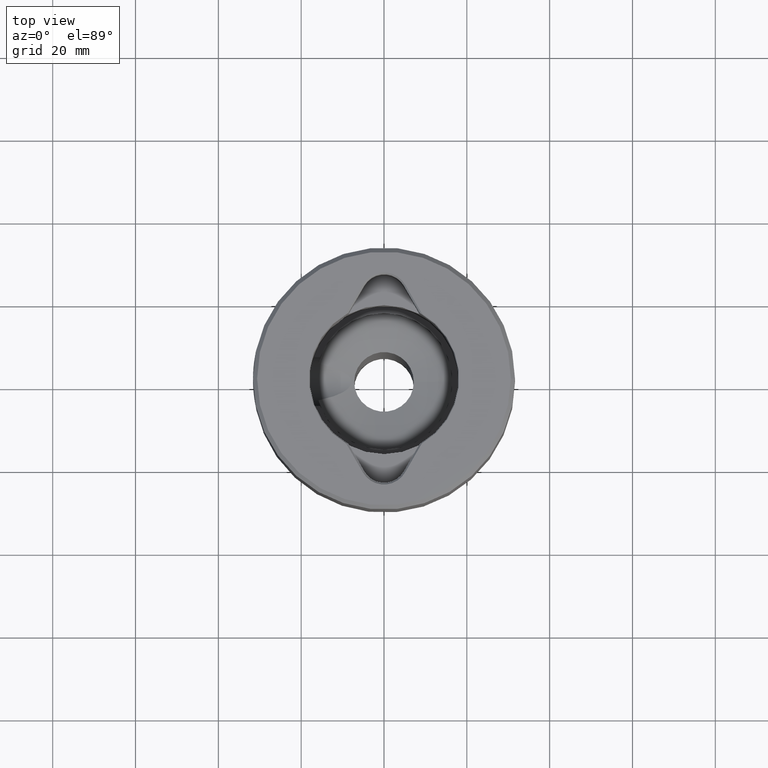
[diagram: clean part render]
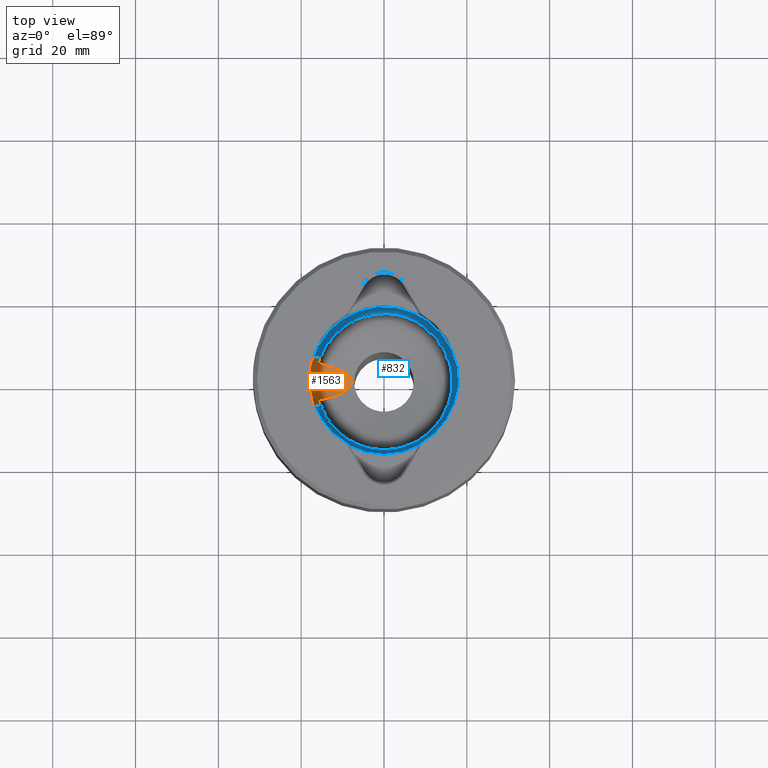
[diagram: same view with the hole feature highlighted: cylindrical wall and planar end face, labeled with their STEP entity ids]
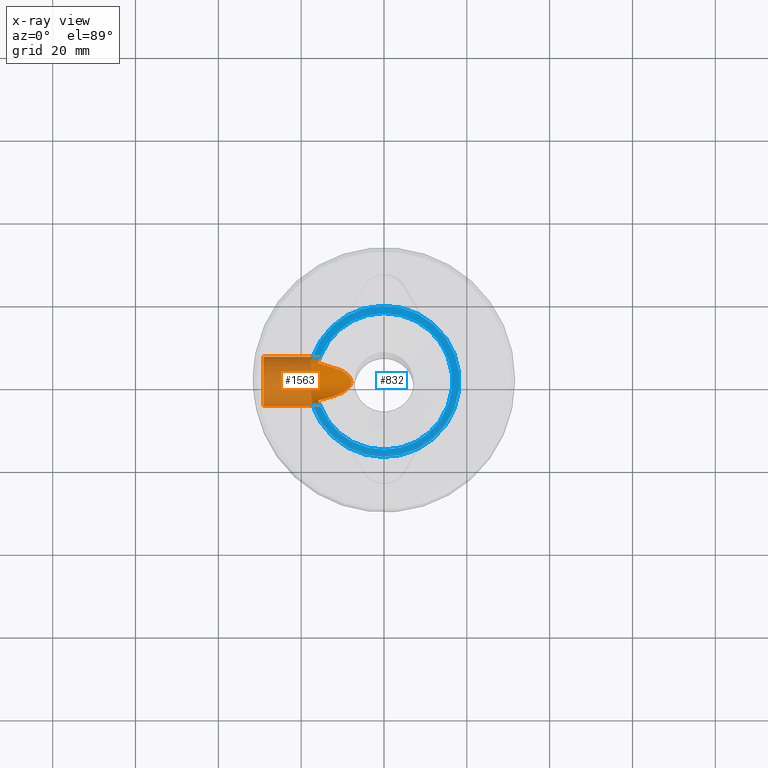
[diagram: x-ray of the same camera — body ghosted, the hole faces saturated]
A machine part, top view. The highlighted faces form one hole feature of diameter 11.8872 mm: the cylindrical wall (entity #1563, orange) and its adjacent planar end face (entity #832, blue) — they share a circular edge in the B-rep.
The next image is the same camera in x-ray (body ghosted, the hole faces saturated) — the bore reads through the body.
Wall:
#3 = CARTESIAN_POINT ( 'NONE',  ( -29.13499999999998380, 3.169268991917194800, -46.12813235872643958 ) ) ;
#4 = EDGE_CURVE ( 'NONE', #154, #17, #1004, .T. ) ;
#15 = CARTESIAN_POINT ( 'NONE',  ( -17.65974059316371125, 4.615101246511007282, -37.32748937166026337 ) ) ;
#17 = VERTEX_POINT ( 'NONE', #1000 ) ;
#54 = VECTOR ( 'NONE', #543, 1000.000000000000000 ) ;
#87 = CARTESIAN_POINT ( 'NONE',  ( -15.87871591281864880, -4.485128867713819467, -45.00000000000000000 ) ) ;
#96 = LINE ( 'NONE', #559, #396 ) ;
#105 = EDGE_CURVE ( 'NONE', #1064, #1503, #841, .T. ) ;
#120 = CARTESIAN_POINT ( 'NONE',  ( -15.87871591281842676, 4.485128867713756406, -45.00000000000009948 ) ) ;
#128 = CARTESIAN_POINT ( 'NONE',  ( -7.948584203051296093, 0.4197264035824127548, -47.03197964361482519 ) ) ;
#136 = CARTESIAN_POINT ( 'NONE',  ( -17.25488941679863686, 5.944465032686061079, -41.54696271765572391 ) ) ;
#139 = CARTESIAN_POINT ( 'NONE',  ( -8.424621231569453528, 1.324886831295680079, -46.89652878440850259 ) ) ;
#141 = VERTEX_POINT ( 'NONE', #647 ) ;
#148 = CARTESIAN_POINT ( 'NONE',  ( -8.557778441972169858, 1.475902258927561217, -46.85929848252312979 ) ) ;
#154 = VERTEX_POINT ( 'NONE', #1602 ) ;
#161 = VERTEX_POINT ( 'NONE', #1095 ) ;
#166 = CARTESIAN_POINT ( 'NONE',  ( -15.68031799022062422, 5.138370136309792890, -44.10015911010111722 ) ) ;
#169 = EDGE_CURVE ( 'NONE', #582, #789, #1159, .T. ) ;
#174 = CARTESIAN_POINT ( 'NONE',  ( -9.488206006153269811, -2.254741809650098183, -46.60535421999524175 ) ) ;
#178 = CARTESIAN_POINT ( 'NONE',  ( -17.73951951973646146, 3.069279814120022820, -35.99462004485808819 ) ) ;
#190 = CARTESIAN_POINT ( 'NONE',  ( -29.13499999999998380, 3.169268991917194800, -46.12813235872643958 ) ) ;
#236 = CARTESIAN_POINT ( 'NONE',  ( -17.47808968508857674, 4.303066460095659629, -37.00000000000001421 ) ) ;
#239 = EDGE_CURVE ( 'NONE', #161, #1054, #260, .T. ) ;
#252 = AXIS2_PLACEMENT_3D ( 'NONE', #1044, #1186, #1199 ) ;
#260 = B_SPLINE_CURVE_WITH_KNOTS ( 'NONE', 3,
 ( #606, #984, #1392, #383, #1263, #1006, #902, #757 ),
 .UNSPECIFIED., .F., .F.,
 ( 4, 2, 2, 4 ),
 ( 8.673617379884035472E-18, 0.001681366410791654709, 0.002522049616187477944, 0.003362732821583300745 ),
 .UNSPECIFIED. ) ;
#261 = CARTESIAN_POINT ( 'NONE',  ( -10.53408056000436588, 2.830849776338641988, -46.33027483142038250 ) ) ;
#283 = CARTESIAN_POINT ( 'NONE',  ( -17.73544809245032283, 4.303066460095659629, -37.00000000000001421 ) ) ;
#291 = CARTESIAN_POINT ( 'NONE',  ( -18.00005038447081418, 0.3995995293501801715, -35.15624741225297356 ) ) ;
#298 = CARTESIAN_POINT ( 'NONE',  ( -17.45303127611503413, 5.335116652827363026, -38.47060134427812272 ) ) ;
#304 = CARTESIAN_POINT ( 'NONE',  ( -15.82693802134651051, 4.668438300619807357, -44.78918809506385657 ) ) ;
#315 = CARTESIAN_POINT ( 'NONE',  ( -10.54970848818695472, -2.838430942403631363, -46.32621679743990484 ) ) ;
#318 = CARTESIAN_POINT ( 'NONE',  ( -28.72781710516956011, 2.212830320148268193, -46.62308418830599521 ) ) ;
#322 = CARTESIAN_POINT ( 'NONE',  ( -28.72790788651533234, -2.213217563268052857, -46.62296967671325376 ) ) ;
#326 = ORIENTED_EDGE ( 'NONE', *, *, #465, .T. ) ;
#327 = CARTESIAN_POINT ( 'NONE',  ( -28.39156783790569705, 0.2903020201593697336, -47.04338772295518112 ) ) ;
#328 = ORIENTED_EDGE ( 'NONE', *, *, #1662, .F. ) ;
#349 = ORIENTED_EDGE ( 'NONE', *, *, #1272, .T. ) ;
#361 = CARTESIAN_POINT ( 'NONE',  ( -17.24898787374755926, -5.961237720381741489, -41.09178217714228509 ) ) ;
#374 = CARTESIAN_POINT ( 'NONE',  ( -17.45237711807387981, -5.341695576362655906, -38.45545562575216536 ) ) ;
#376 = EDGE_CURVE ( 'NONE', #141, #1353, #96, .T. ) ;
#383 = CARTESIAN_POINT ( 'NONE',  ( -15.55482444925873331, -5.505722790153260604, -43.35639408592899002 ) ) ;
#385 = B_SPLINE_CURVE_WITH_KNOTS ( 'NONE', 3,
 ( #921, #136, #1175, #811, #418, #556, #1314, #550, #1440, #298, #401, #806, #15, #283 ),
 .UNSPECIFIED., .F., .F.,
 ( 4, 2, 2, 2, 2, 2, 4 ),
 ( 0.0000000000000000000, 0.001356916952770659789, 0.002035375429156000091, 0.002713833905541340394, 0.003392292381926680263, 0.004070750858312020132, 0.005427667811082718952 ),
 .UNSPECIFIED. ) ;
#396 = VECTOR ( 'NONE', #1073, 1000.000000000000000 ) ;
#399 = CARTESIAN_POINT ( 'NONE',  ( -8.421721133938241621, -1.321473119626175974, -46.89734118146309783 ) ) ;
#400 = CARTESIAN_POINT ( 'NONE',  ( -29.13499999999998380, 4.303066460095659629, -37.00000000000000711 ) ) ;
#401 = CARTESIAN_POINT ( 'NONE',  ( -17.48482301144992590, 5.230468492783964862, -38.26812100276221429 ) ) ;
#405 = CARTESIAN_POINT ( 'NONE',  ( -9.485807888113100717, 2.253223151500319599, -46.60599448321172389 ) ) ;
#407 = DIRECTION ( 'NONE',  ( 1.000000000000000000, 0.0000000000000000000, 2.238352872228141622E-16 ) ) ;
#416 = CARTESIAN_POINT ( 'NONE',  ( -17.73773585705187017, -3.066641091906500360, -36.00467162094060569 ) ) ;
#418 = CARTESIAN_POINT ( 'NONE',  ( -17.27759618979989753, 5.877863810190451233, -40.18941681144517020 ) ) ;
#426 = CARTESIAN_POINT ( 'NONE',  ( -17.93301564307783735, -1.600984120489764351, -35.36193294050647751 ) ) ;
#451 = CARTESIAN_POINT ( 'NONE',  ( -8.086389199141580164, -0.8029940697207943456, -46.99236771774894805 ) ) ;
#458 = CARTESIAN_POINT ( 'NONE',  ( -10.91385912449034024, -3.002905337484227388, -46.23229583061102232 ) ) ;
#460 = CARTESIAN_POINT ( 'NONE',  ( -28.47298010805440427, -1.138407004167235614, -46.94069079623534435 ) ) ;
#465 = EDGE_CURVE ( 'NONE', #1487, #1054, #1059, .T. ) ;
#466 = CARTESIAN_POINT ( 'NONE',  ( -17.47808968508857674, -4.303066460095659629, -37.00000000000001421 ) ) ;
#472 = ORIENTED_EDGE ( 'NONE', *, *, #1258, .F. ) ;
#531 = CARTESIAN_POINT ( 'NONE',  ( -12.77898296353568952, -3.700208595761669716, -45.76023914925220026 ) ) ;
#534 = CARTESIAN_POINT ( 'NONE',  ( -15.87871591281842676, 4.485128867713756406, -45.00000000000009948 ) ) ;
#543 = DIRECTION ( 'NONE',  ( -1.000000000000000000, -0.0000000000000000000, -2.238352872228141622E-16 ) ) ;
#546 = VECTOR ( 'NONE', #407, 1000.000000000000000 ) ;
#550 = CARTESIAN_POINT ( 'NONE',  ( -17.37009226415363017, 5.598884156984400562, -39.09260677213644897 ) ) ;
#555 = CARTESIAN_POINT ( 'NONE',  ( -17.98300174837449106, -0.8076756600791862306, -35.20804669246030016 ) ) ;
#556 = CARTESIAN_POINT ( 'NONE',  ( -17.30698711846406823, 5.790752105750455847, -39.74145858945264820 ) ) ;
#559 = CARTESIAN_POINT ( 'NONE',  ( -29.13499999999998380, -4.303066460095659629, -37.00000000000000711 ) ) ;
#563 = CARTESIAN_POINT ( 'NONE',  ( -17.47808968508857674, 4.303066460095659629, -37.00000000000001421 ) ) ;
#579 = EDGE_CURVE ( 'NONE', #17, #1503, #385, .T. ) ;
#580 = CARTESIAN_POINT ( 'NONE',  ( -17.93344118099959772, 1.597092043690149010, -35.36060056394857298 ) ) ;
#582 = VERTEX_POINT ( 'NONE', #3 ) ;
#585 = CARTESIAN_POINT ( 'NONE',  ( -14.31534451165081201, -4.133562751429330717, -45.38054103594014776 ) ) ;
#586 = CARTESIAN_POINT ( 'NONE',  ( -28.64890739544052423, -1.951991849414767222, -46.72088408440625784 ) ) ;
#589 = CARTESIAN_POINT ( 'NONE',  ( -28.39123471314119840, -0.2815437069525423830, -47.04380905054649986 ) ) ;
#597 = CARTESIAN_POINT ( 'NONE',  ( -29.01836118009460819, -2.947204214217280960, -46.26810142953657845 ) ) ;
#606 = CARTESIAN_POINT ( 'NONE',  ( -15.87871591281864880, -4.485128867713819467, -45.00000000000000000 ) ) ;
#615 = ORIENTED_EDGE ( 'NONE', *, *, #376, .F. ) ;
#623 = AXIS2_PLACEMENT_3D ( 'NONE', #696, #1337, #1083 ) ;
#634 = CARTESIAN_POINT ( 'NONE',  ( -17.73544809245032283, -4.303066460095659629, -37.00000000000001421 ) ) ;
#643 = CARTESIAN_POINT ( 'NONE',  ( -17.58578032052965412, -4.884619659714878992, -37.68418130489555296 ) ) ;
#647 = CARTESIAN_POINT ( 'NONE',  ( -17.73544809245032283, -4.303066460095659629, -37.00000000000001421 ) ) ;
#652 = CARTESIAN_POINT ( 'NONE',  ( -17.65972925080994216, -4.615147994970118184, -37.32753843549598827 ) ) ;
#655 = CARTESIAN_POINT ( 'NONE',  ( -15.09519321709961304, -4.319881757307797443, -45.19003963722776263 ) ) ;
#656 = VECTOR ( 'NONE', #766, 1000.000000000000000 ) ;
#664 = ORIENTED_EDGE ( 'NONE', *, *, #579, .T. ) ;
#668 = CARTESIAN_POINT ( 'NONE',  ( -9.002153746872750162, 1.888909912605161390, -46.73693644783809731 ) ) ;
#671 = CARTESIAN_POINT ( 'NONE',  ( -7.908999161993494731, 0.2104086119077938632, -47.04347733017014122 ) ) ;
#672 = CARTESIAN_POINT ( 'NONE',  ( -17.70757355183502568, -3.235638679801304374, -36.11036548238104871 ) ) ;
#679 = CARTESIAN_POINT ( 'NONE',  ( -7.908159212613716349, -0.2034202581083913997, -47.04372061564155416 ) ) ;
#681 = CARTESIAN_POINT ( 'NONE',  ( -17.79480805210510397, -2.715946853281268503, -35.80941481807833071 ) ) ;
#696 = CARTESIAN_POINT ( 'NONE',  ( -29.13499999999998380, 0.0000000000000000000, -41.09999999999998010 ) ) ;
#710 = CARTESIAN_POINT ( 'NONE',  ( -8.558031158205302802, -1.476354926101384191, -46.85922458744269647 ) ) ;
#712 = CARTESIAN_POINT ( 'NONE',  ( -17.98657520850696301, 0.8013288071157083081, -35.19667203812526424 ) ) ;
#757 = CARTESIAN_POINT ( 'NONE',  ( -15.41861274693673955, -5.875064336668996745, -42.00000000000000000 ) ) ;
#766 = DIRECTION ( 'NONE',  ( -1.000000000000000000, -0.0000000000000000000, -2.238352872228141622E-16 ) ) ;
#767 = CARTESIAN_POINT ( 'NONE',  ( -15.41861274693673955, -5.875064336668996745, -42.00000000000000000 ) ) ;
#771 = CARTESIAN_POINT ( 'NONE',  ( -17.27361060634245149, -5.889508846079281490, -40.17798685287650784 ) ) ;
#789 = VERTEX_POINT ( 'NONE', #1077 ) ;
#795 = CARTESIAN_POINT ( 'NONE',  ( -15.41861274693673955, 5.875064336668996745, -42.00000000000000000 ) ) ;
#805 = CARTESIAN_POINT ( 'NONE',  ( -17.82168907028121652, -2.534138618924547171, -35.71997473518626975 ) ) ;
#806 = CARTESIAN_POINT ( 'NONE',  ( -17.58550906844438799, 4.885664375148834893, -37.68525286889200743 ) ) ;
#810 = CARTESIAN_POINT ( 'NONE',  ( -17.54631524529848363, 4.025949554925296603, -36.70915793654535264 ) ) ;
#811 = CARTESIAN_POINT ( 'NONE',  ( -17.26708544708199611, 5.908519309107444606, -40.41651335315835070 ) ) ;
#827 = CARTESIAN_POINT ( 'NONE',  ( -15.77631472574170601, 4.835608917861583755, -44.56708649115371657 ) ) ;
#830 = CARTESIAN_POINT ( 'NONE',  ( -28.91253034172545000, 2.710358581942224898, -46.39670023072624616 ) ) ;
#831 = CARTESIAN_POINT ( 'NONE',  ( -17.61376809174897673, 3.723735352916617281, -36.45035720886340869 ) ) ;
#841 = LINE ( 'NONE', #400, #54 ) ;
#846 = CARTESIAN_POINT ( 'NONE',  ( -28.52326822906408665, 1.422804000834928528, -46.87747037864890132 ) ) ;
#902 = CARTESIAN_POINT ( 'NONE',  ( -15.43498477826397064, -5.832097315977880392, -42.28048223435033037 ) ) ;
#921 = CARTESIAN_POINT ( 'NONE',  ( -17.27848717451849225, 5.875064336668996745, -42.00000000000000711 ) ) ;
#923 = CARTESIAN_POINT ( 'NONE',  ( -12.77357461375436287, 3.698614830238702300, -45.76158028319667181 ) ) ;
#941 = CARTESIAN_POINT ( 'NONE',  ( -17.99997459435151370, -0.2031945115799497770, -35.15647694018812075 ) ) ;
#950 = CARTESIAN_POINT ( 'NONE',  ( -17.99658589789812524, -0.4044599776225978327, -35.16671542258304584 ) ) ;
#957 = CARTESIAN_POINT ( 'NONE',  ( -9.004782376149123024, -1.891032092975599710, -46.73622034454714225 ) ) ;
#958 = CARTESIAN_POINT ( 'NONE',  ( -28.47442836501477714, 1.147591819891040865, -46.93886959470955134 ) ) ;
#966 = EDGE_CURVE ( 'NONE', #141, #1487, #1187, .T. ) ;
#971 = ORIENTED_EDGE ( 'NONE', *, *, #1223, .F. ) ;
#984 = CARTESIAN_POINT ( 'NONE',  ( -15.77519346842469439, -4.851629704950651600, -44.57851192688917763 ) ) ;
#998 = CARTESIAN_POINT ( 'NONE',  ( -29.13500000000000512, -3.169268991917194356, -46.12813235872641826 ) ) ;
#1000 = CARTESIAN_POINT ( 'NONE',  ( -17.27848717451849225, 5.875064336668996745, -42.00000000000000711 ) ) ;
#1004 = LINE ( 'NONE', #1268, #656 ) ;
#1006 = CARTESIAN_POINT ( 'NONE',  ( -15.45862248000051586, -5.769619042625746985, -42.55485892899337586 ) ) ;
#1007 = CARTESIAN_POINT ( 'NONE',  ( -15.09506070086857044, 4.319853809267001132, -45.19007177839817047 ) ) ;
#1013 = CARTESIAN_POINT ( 'NONE',  ( -14.31620311427808723, 4.133872990525722990, -45.38032434487759303 ) ) ;
#1026 = B_SPLINE_CURVE_WITH_KNOTS ( 'NONE', 3,
 ( #1432, #1182, #1672, #672, #416, #681, #805, #1189, #426, #1320, #555, #950, #941, #291, #712, #580, #1062, #1216, #178, #831, #810, #563 ),
 .UNSPECIFIED., .F., .F.,
 ( 4, 2, 2, 2, 2, 2, 2, 2, 2, 2, 4 ),
 ( 8.673617379884035472E-19, 0.001205497997501937422, 0.001808246996252906458, 0.002410995995003875278, 0.003616493992505805544, 0.004219242991256767425, 0.004821991990007730607, 0.006027489987509655235, 0.007232987985011580731, 0.008438485982513507094, 0.009643983980015431723 ),
 .UNSPECIFIED. ) ;
#1027 = ORIENTED_EDGE ( 'NONE', *, *, #966, .T. ) ;
#1044 = CARTESIAN_POINT ( 'NONE',  ( -29.13499999999998380, 0.0000000000000000000, -41.09999999999998010 ) ) ;
#1045 = CARTESIAN_POINT ( 'NONE',  ( -7.946892993800669380, -0.4130514367404827802, -47.03246873635111314 ) ) ;
#1047 = CARTESIAN_POINT ( 'NONE',  ( -29.13499999999998380, -5.875064336668996745, -42.00000000000000000 ) ) ;
#1054 = VERTEX_POINT ( 'NONE', #767 ) ;
#1059 = LINE ( 'NONE', #1047, #546 ) ;
#1062 = CARTESIAN_POINT ( 'NONE',  ( -17.89468791939741621, 1.979254142623061430, -35.48138563534600820 ) ) ;
#1064 = VERTEX_POINT ( 'NONE', #236 ) ;
#1071 = ORIENTED_EDGE ( 'NONE', *, *, #4, .T. ) ;
#1073 = DIRECTION ( 'NONE',  ( 1.000000000000000000, 0.0000000000000000000, 2.238352872228141622E-16 ) ) ;
#1077 = CARTESIAN_POINT ( 'NONE',  ( -29.13500000000000512, -3.169268991917194356, -46.12813235872641826 ) ) ;
#1083 = DIRECTION ( 'NONE',  ( 0.0000000000000000000, 0.0000000000000000000, 1.000000000000000000 ) ) ;
#1086 = CARTESIAN_POINT ( 'NONE',  ( -9.837242105554929950, -2.464455448254169401, -46.51262335399459857 ) ) ;
#1088 = CARTESIAN_POINT ( 'NONE',  ( -28.40806529981218631, 0.5775518579252996165, -47.02248250149474273 ) ) ;
#1091 = CARTESIAN_POINT ( 'NONE',  ( -29.01872157818244702, 2.947890364174267752, -46.26766894414689801 ) ) ;
#1095 = CARTESIAN_POINT ( 'NONE',  ( -15.87871591281864880, -4.485128867713819467, -45.00000000000000000 ) ) ;
#1103 = CARTESIAN_POINT ( 'NONE',  ( -28.64994935480076776, 1.955431134270609439, -46.71959289273542737 ) ) ;
#1121 = CARTESIAN_POINT ( 'NONE',  ( -17.73544809245032283, 4.303066460095659629, -37.00000000000001421 ) ) ;
#1131 = VERTEX_POINT ( 'NONE', #534 ) ;
#1146 = ORIENTED_EDGE ( 'NONE', *, *, #105, .F. ) ;
#1148 = B_SPLINE_CURVE_WITH_KNOTS ( 'NONE', 3,
 ( #795, #1593, #1332, #1194, #166, #827, #304, #1350 ),
 .UNSPECIFIED., .F., .F.,
 ( 4, 2, 2, 4 ),
 ( 0.0000000000000000000, 0.001680228961084241678, 0.002520343441626363059, 0.003360457922168484657 ),
 .UNSPECIFIED. ) ;
#1156 = CARTESIAN_POINT ( 'NONE',  ( -17.27848717451849225, -5.875064336668996745, -42.00000000000000711 ) ) ;
#1159 = B_SPLINE_CURVE_WITH_KNOTS ( 'NONE', 3,
 ( #190, #1091, #830, #318, #1103, #846, #958, #1088, #327, #589, #1215, #460, #1606, #586, #322, #1230, #597, #998 ),
 .UNSPECIFIED., .F., .F.,
 ( 4, 2, 2, 2, 2, 2, 2, 2, 4 ),
 ( 0.004243872954522444688, 0.005095147408334665083, 0.005946421862146885479, 0.006797696315959105007, 0.007648970769771325402, 0.008500245223583545798, 0.009351519677395765326, 0.01020279413120798659, 0.01105406858502020612 ),
 .UNSPECIFIED. ) ;
#1164 = CARTESIAN_POINT ( 'NONE',  ( -8.187125900011364976, -0.9869371718566788410, -46.96356640612092548 ) ) ;
#1175 = CARTESIAN_POINT ( 'NONE',  ( -17.24911640784538136, 5.960859350823936254, -41.09446739480885213 ) ) ;
#1177 = FACE_OUTER_BOUND ( 'NONE', #1631, .T. ) ;
#1182 = CARTESIAN_POINT ( 'NONE',  ( -17.54630753166970791, -4.025980885953251764, -36.70919081934914630 ) ) ;
#1186 = DIRECTION ( 'NONE',  ( -1.000000000000000000, -0.0000000000000000000, -2.238352872228141622E-16 ) ) ;
#1187 = B_SPLINE_CURVE_WITH_KNOTS ( 'NONE', 3,
 ( #634, #652, #643, #374, #1419, #1528, #771, #361, #1521, #1156 ),
 .UNSPECIFIED., .F., .F.,
 ( 4, 2, 2, 2, 4 ),
 ( 0.0000000000000000000, 0.001357282532757201222, 0.002714565065514402444, 0.004071847598271604099, 0.005429130131028804887 ),
 .UNSPECIFIED. ) ;
#1189 = CARTESIAN_POINT ( 'NONE',  ( -17.89439849500775992, -1.982004523881633729, -35.48229257195178832 ) ) ;
#1194 = CARTESIAN_POINT ( 'NONE',  ( -15.63467731691000218, 5.274684817462084396, -43.85354033052460920 ) ) ;
#1199 = DIRECTION ( 'NONE',  ( 0.0000000000000000000, 0.0000000000000000000, 1.000000000000000000 ) ) ;
#1200 = FACE_OUTER_BOUND ( 'NONE', #1401, .T. ) ;
#1210 = CARTESIAN_POINT ( 'NONE',  ( -10.89843361295637436, 2.996207431555043765, -46.23625686413485170 ) ) ;
#1215 = CARTESIAN_POINT ( 'NONE',  ( -28.40726248572875789, -0.5672878153005923574, -47.02349761703140985 ) ) ;
#1216 = CARTESIAN_POINT ( 'NONE',  ( -17.79807334049802492, 2.714016960148156521, -35.79713414465206256 ) ) ;
#1223 = EDGE_CURVE ( 'NONE', #1353, #1064, #1026, .T. ) ;
#1230 = CARTESIAN_POINT ( 'NONE',  ( -28.91326441861943763, -2.712192471906369029, -46.39580381317007607 ) ) ;
#1258 = EDGE_CURVE ( 'NONE', #154, #1131, #1148, .T. ) ;
#1263 = CARTESIAN_POINT ( 'NONE',  ( -15.51838491448997281, -5.606892412195626285, -43.09195278015431541 ) ) ;
#1268 = CARTESIAN_POINT ( 'NONE',  ( -29.13499999999998380, 5.875064336668996745, -42.00000000000000000 ) ) ;
#1272 = EDGE_CURVE ( 'NONE', #789, #582, #1362, .T. ) ;
#1299 = CARTESIAN_POINT ( 'NONE',  ( -12.02119474604759120, -3.454378292790186489, -45.94971458598282510 ) ) ;
#1308 = CARTESIAN_POINT ( 'NONE',  ( -8.845948090793100960, 1.757612675323145135, -46.77966585040389447 ) ) ;
#1313 = CARTESIAN_POINT ( 'NONE',  ( -8.089037226951266035, 0.8083874333084646313, -46.99160950028034733 ) ) ;
#1314 = CARTESIAN_POINT ( 'NONE',  ( -17.32570298634974293, 5.734773325714983550, -39.52218306598285125 ) ) ;
#1320 = CARTESIAN_POINT ( 'NONE',  ( -17.97275688109828806, -1.009485089126119783, -35.23929470898269045 ) ) ;
#1332 = CARTESIAN_POINT ( 'NONE',  ( -15.51287802815809158, 5.626931152355648891, -43.09390070670851003 ) ) ;
#1337 = DIRECTION ( 'NONE',  ( -1.000000000000000000, -0.0000000000000000000, -2.238352872228141622E-16 ) ) ;
#1348 = CARTESIAN_POINT ( 'NONE',  ( -9.828072271985957897, 2.458997996993296020, -46.51505439669529807 ) ) ;
#1350 = CARTESIAN_POINT ( 'NONE',  ( -15.87871591281842676, 4.485128867713756406, -45.00000000000009948 ) ) ;
#1353 = VERTEX_POINT ( 'NONE', #466 ) ;
#1362 = CIRCLE ( 'NONE', #623, 5.943599999999999994 ) ;
#1372 = ORIENTED_EDGE ( 'NONE', *, *, #239, .F. ) ;
#1392 = CARTESIAN_POINT ( 'NONE',  ( -15.67697036224831741, -5.152163489085762826, -44.11550316760660451 ) ) ;
#1401 = EDGE_LOOP ( 'NONE', ( #615, #1027, #326, #1372, #328, #472, #1071, #664, #1146, #971 ) ) ;
#1408 = B_SPLINE_CURVE_WITH_KNOTS ( 'NONE', 3,
 ( #120, #1007, #1013, #923, #1669, #1210, #261, #1348, #405, #668, #1308, #148, #139, #1465, #1313, #128, #671, #679, #1045, #451, #1164, #399, #710, #1590, #957, #174, #1086, #315, #458, #1299, #531, #585, #655, #87 ),
 .UNSPECIFIED., .F., .F.,
 ( 4, 2, 2, 2, 2, 2, 2, 2, 2, 2, 2, 2, 2, 2, 2, 2, 4 ),
 ( 0.0008859637086206665138, 0.003354904312487089722, 0.005823844916353512063, 0.007058315218286727137, 0.008292785520219940476, 0.008910020671186548447, 0.009527255822153156417, 0.01014449097311976092, 0.01076172612408636889, 0.01137896127505297339, 0.01199619642601958136, 0.01261343157698618586, 0.01323066672795279036, 0.01446513702988599936, 0.01569960733181921184, 0.01816854793568562984, 0.02063748853955204784 ),
 .UNSPECIFIED. ) ;
#1419 = CARTESIAN_POINT ( 'NONE',  ( -17.39270068669268809, -5.529643607952101192, -38.87463754991716058 ) ) ;
#1432 = CARTESIAN_POINT ( 'NONE',  ( -17.47808968508857674, -4.303066460095659629, -37.00000000000001421 ) ) ;
#1440 = CARTESIAN_POINT ( 'NONE',  ( -17.39576746130710561, 5.518971358546307826, -38.88230702451098608 ) ) ;
#1459 = ORIENTED_EDGE ( 'NONE', *, *, #169, .T. ) ;
#1465 = CARTESIAN_POINT ( 'NONE',  ( -8.190621368697788895, 0.9926241216894411412, -46.96257353192754636 ) ) ;
#1487 = VERTEX_POINT ( 'NONE', #1626 ) ;
#1493 = CYLINDRICAL_SURFACE ( 'NONE', #252, 5.943599999999999994 ) ;
#1503 = VERTEX_POINT ( 'NONE', #1121 ) ;
#1521 = CARTESIAN_POINT ( 'NONE',  ( -17.25488195640502553, -5.944486973605870972, -41.54681949063853352 ) ) ;
#1528 = CARTESIAN_POINT ( 'NONE',  ( -17.30381054256708495, -5.801821809982614653, -39.73323003017544153 ) ) ;
#1563 = ADVANCED_FACE ( 'NONE', ( #1177, #1200 ), #1493, .F. ) ;
#1590 = CARTESIAN_POINT ( 'NONE',  ( -8.849840146046854983, -1.761208932589308107, -46.77859443984123544 ) ) ;
#1593 = CARTESIAN_POINT ( 'NONE',  ( -15.45137067951956489, 5.789093894825086295, -42.56120208542758832 ) ) ;
#1602 = CARTESIAN_POINT ( 'NONE',  ( -15.41861274693673955, 5.875064336668996745, -42.00000000000000000 ) ) ;
#1606 = CARTESIAN_POINT ( 'NONE',  ( -28.52176380542726264, -1.415518073822676914, -46.87935278843529119 ) ) ;
#1626 = CARTESIAN_POINT ( 'NONE',  ( -17.27848717451849225, -5.875064336668996745, -42.00000000000000711 ) ) ;
#1631 = EDGE_LOOP ( 'NONE', ( #1459, #349 ) ) ;
#1662 = EDGE_CURVE ( 'NONE', #1131, #161, #1408, .T. ) ;
#1669 = CARTESIAN_POINT ( 'NONE',  ( -12.01218460409168109, 3.451500729856671779, -45.95196599544048155 ) ) ;
#1672 = CARTESIAN_POINT ( 'NONE',  ( -17.61361075716549962, -3.724351102482070797, -36.45098858594614910 ) ) ;
End face:
#4 = EDGE_CURVE ( 'NONE', #154, #17, #1004, .T. ) ;
#17 = VERTEX_POINT ( 'NONE', #1000 ) ;
#36 = CIRCLE ( 'NONE', #1537, 18.25000000000000000 ) ;
#45 = PLANE ( 'NONE',  #988 ) ;
#64 = ORIENTED_EDGE ( 'NONE', *, *, #683, .F. ) ;
#92 = DIRECTION ( 'NONE',  ( 0.0000000000000000000, 0.0000000000000000000, 1.000000000000000000 ) ) ;
#117 = FACE_OUTER_BOUND ( 'NONE', #467, .T. ) ;
#154 = VERTEX_POINT ( 'NONE', #1602 ) ;
#356 = CARTESIAN_POINT ( 'NONE',  ( 0.0000000000000000000, 0.0000000000000000000, -42.00000000000000000 ) ) ;
#407 = DIRECTION ( 'NONE',  ( 1.000000000000000000, 0.0000000000000000000, 2.238352872228141622E-16 ) ) ;
#465 = EDGE_CURVE ( 'NONE', #1487, #1054, #1059, .T. ) ;
#467 = EDGE_LOOP ( 'NONE', ( #1561, #64, #911, #953 ) ) ;
#480 = DIRECTION ( 'NONE',  ( 0.0000000000000000000, 0.0000000000000000000, 1.000000000000000000 ) ) ;
#546 = VECTOR ( 'NONE', #407, 1000.000000000000000 ) ;
#573 = AXIS2_PLACEMENT_3D ( 'NONE', #630, #1512, #1178 ) ;
#630 = CARTESIAN_POINT ( 'NONE',  ( 0.0000000000000000000, 0.0000000000000000000, -42.00000000000000000 ) ) ;
#656 = VECTOR ( 'NONE', #766, 1000.000000000000000 ) ;
#661 = EDGE_CURVE ( 'NONE', #1487, #17, #36, .T. ) ;
#683 = EDGE_CURVE ( 'NONE', #1054, #154, #1365, .T. ) ;
#762 = CARTESIAN_POINT ( 'NONE',  ( 0.0000000000000000000, 0.0000000000000000000, -42.00000000000000000 ) ) ;
#766 = DIRECTION ( 'NONE',  ( -1.000000000000000000, -0.0000000000000000000, -2.238352872228141622E-16 ) ) ;
#767 = CARTESIAN_POINT ( 'NONE',  ( -15.41861274693673955, -5.875064336668996745, -42.00000000000000000 ) ) ;
#832 = ADVANCED_FACE ( 'NONE', ( #117 ), #45, .T. ) ;
#879 = DIRECTION ( 'NONE',  ( 1.000000000000000000, 0.0000000000000000000, 0.0000000000000000000 ) ) ;
#911 = ORIENTED_EDGE ( 'NONE', *, *, #465, .F. ) ;
#953 = ORIENTED_EDGE ( 'NONE', *, *, #661, .T. ) ;
#988 = AXIS2_PLACEMENT_3D ( 'NONE', #356, #480, #1114 ) ;
#1000 = CARTESIAN_POINT ( 'NONE',  ( -17.27848717451849225, 5.875064336668996745, -42.00000000000000711 ) ) ;
#1004 = LINE ( 'NONE', #1268, #656 ) ;
#1047 = CARTESIAN_POINT ( 'NONE',  ( -29.13499999999998380, -5.875064336668996745, -42.00000000000000000 ) ) ;
#1054 = VERTEX_POINT ( 'NONE', #767 ) ;
#1059 = LINE ( 'NONE', #1047, #546 ) ;
#1114 = DIRECTION ( 'NONE',  ( 1.000000000000000000, 0.0000000000000000000, -0.0000000000000000000 ) ) ;
#1178 = DIRECTION ( 'NONE',  ( 1.000000000000000000, 0.0000000000000000000, 0.0000000000000000000 ) ) ;
#1268 = CARTESIAN_POINT ( 'NONE',  ( -29.13499999999998380, 5.875064336668996745, -42.00000000000000000 ) ) ;
#1365 = CIRCLE ( 'NONE', #573, 16.50000000000000000 ) ;
#1487 = VERTEX_POINT ( 'NONE', #1626 ) ;
#1512 = DIRECTION ( 'NONE',  ( 0.0000000000000000000, 0.0000000000000000000, 1.000000000000000000 ) ) ;
#1537 = AXIS2_PLACEMENT_3D ( 'NONE', #762, #92, #879 ) ;
#1561 = ORIENTED_EDGE ( 'NONE', *, *, #4, .F. ) ;
#1602 = CARTESIAN_POINT ( 'NONE',  ( -15.41861274693673955, 5.875064336668996745, -42.00000000000000000 ) ) ;
#1626 = CARTESIAN_POINT ( 'NONE',  ( -17.27848717451849225, -5.875064336668996745, -42.00000000000000711 ) ) ;